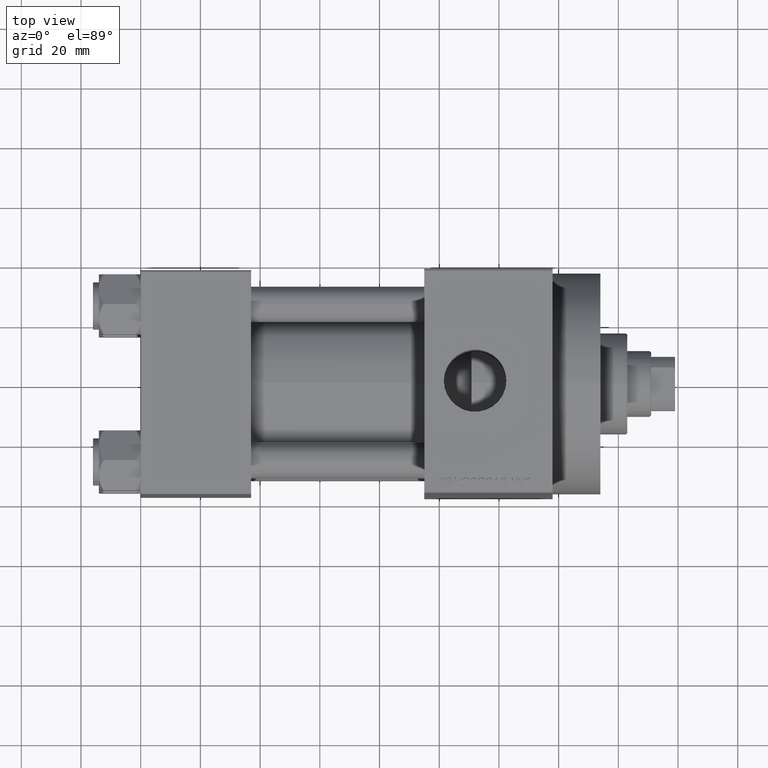
[diagram: clean part render]
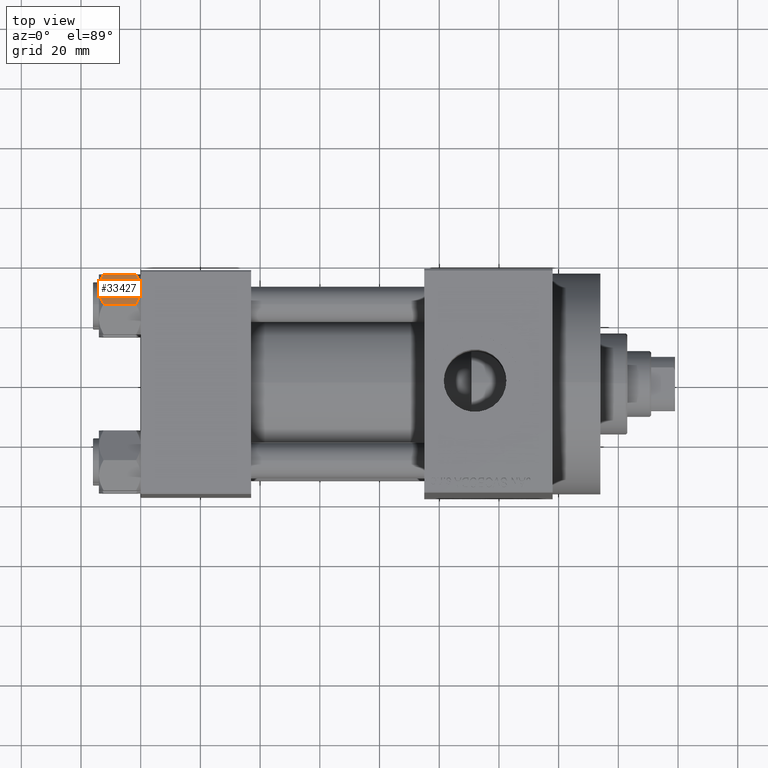
[diagram: same view with one face highlighted and labeled with its STEP entity id]
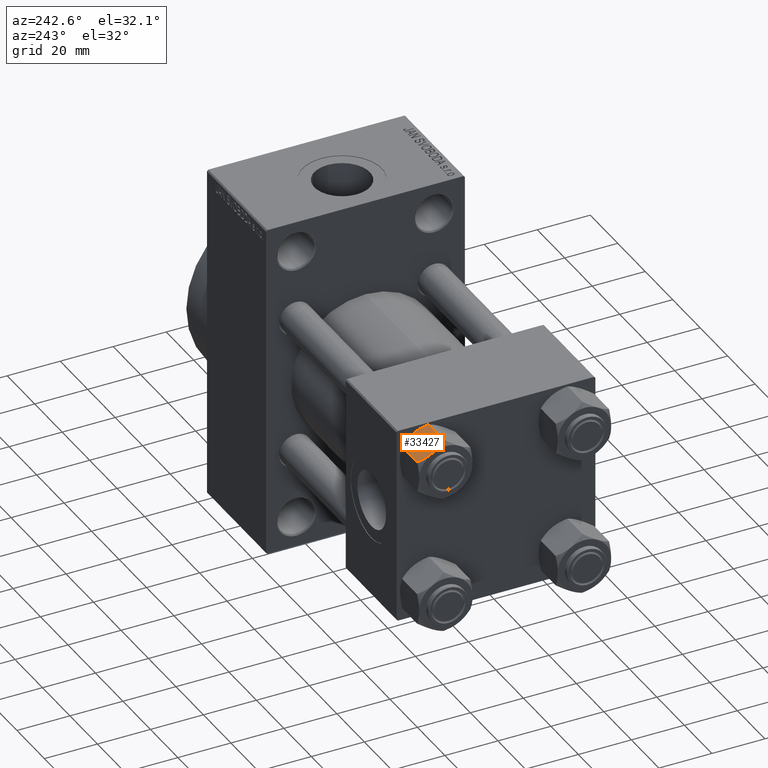
[diagram: same view with one face highlighted and labeled with its STEP entity id]
A machine part, top view. The second image highlights one B-rep face of the part: STEP entity #33427.
A second angle (auxiliary view) of the same face is appended — the face is thin or edge-on in the first view.
In plain terms, the highlighted planar face has unit normal (-0, -0.5, -0.866).
Its self-contained STEP definition (entity closure, byte-faithful):
#796 = CARTESIAN_POINT ( 'NONE',  ( 8.715000000000005187, 5.031607595987590109, 0.000000000000000000 ) ) ;
#1751 = EDGE_CURVE ( 'NONE', #17080, #6787, #30634, .T. ) ;
#2928 = CARTESIAN_POINT ( 'NONE',  ( 10.69662495661650503, 1.599332489581333672, -13.28854452935655139 ) ) ;
#3083 = VECTOR ( 'NONE', #19859, 1000.000000000000000 ) ;
#3394 = CARTESIAN_POINT ( 'NONE',  ( 8.715000000000005187, 5.031607595987590109, -14.00000000000000000 ) ) ;
#4304 = VERTEX_POINT ( 'NONE', #7261 ) ;
#5158 = CARTESIAN_POINT ( 'NONE',  ( 7.455303369716807182, 7.213466161761384221, -13.69973261901325934 ) ) ;
#5639 = CARTESIAN_POINT ( 'NONE',  ( 8.460569896449618099, 5.472293462311861312, -14.00000000000000000 ) ) ;
#5872 = CARTESIAN_POINT ( 'NONE',  ( 6.265545725125286403, 9.274186850887383926, -12.89876091710046957 ) ) ;
#6073 = EDGE_CURVE ( 'NONE', #22867, #4304, #17368, .T. ) ;
#6658 = CARTESIAN_POINT ( 'NONE',  ( 8.715000000000005187, 5.031607595987590109, 0.000000000000000000 ) ) ;
#6787 = VERTEX_POINT ( 'NONE', #9560 ) ;
#7007 = CARTESIAN_POINT ( 'NONE',  ( 7.713000053756307928, 6.767122412062951398, -0.1545239700039825748 ) ) ;
#7242 = CARTESIAN_POINT ( 'NONE',  ( 5.810000000000000497, 10.06321519197518022, -1.556784808024815892 ) ) ;
#7261 = CARTESIAN_POINT ( 'NONE',  ( 8.715000000000005187, 5.031607595987590109, -14.00000000000000000 ) ) ;
#7308 = VERTEX_POINT ( 'NONE', #26650 ) ;
#7435 = CARTESIAN_POINT ( 'NONE',  ( 9.220295946303432189, 4.156409344131451356, -14.00000000000000178 ) ) ;
#8396 = LINE ( 'NONE', #22958, #3083 ) ;
#9560 = CARTESIAN_POINT ( 'NONE',  ( 5.810000000000000497, 10.06321519197518022, -1.556784808024815892 ) ) ;
#10825 = CARTESIAN_POINT ( 'NONE',  ( 11.62000000000000099, -1.924525737834042474E-15, -1.556784808024813893 ) ) ;
#11308 = EDGE_CURVE ( 'NONE', #22867, #6787, #8396, .T. ) ;
#13482 = CARTESIAN_POINT ( 'NONE',  ( 9.227666995912102266, 4.143642311704121894, -0.03994118060690670519 ) ) ;
#17080 = VERTEX_POINT ( 'NONE', #6658 ) ;
#17368 = B_SPLINE_CURVE_WITH_KNOTS ( 'NONE', 3,
 ( #23299, #5872, #24014, #5158, #41222, #31182, #5639, #34760 ),
 .UNSPECIFIED., .F., .F.,
 ( 4, 2, 2, 4 ),
 ( 2.544312114902182352E-07, 0.003011550106433542526, 0.004517197944044567919, 0.006022845781655592444 ),
 .UNSPECIFIED. ) ;
#18421 = CARTESIAN_POINT ( 'NONE',  ( 11.62000000000000099, -1.689012838886770227E-15, -12.44321519197518633 ) ) ;
#18530 = LINE ( 'NONE', #26158, #29252 ) ;
#19743 = B_SPLINE_CURVE_WITH_KNOTS ( 'NONE', 3,
 ( #3394, #7435, #36589, #2928, #43277, #18421 ),
 .UNSPECIFIED., .F., .F.,
 ( 4, 2, 4 ),
 ( 0.006022845781655592444, 0.009013049135303636758, 0.01200325248895168194 ),
 .UNSPECIFIED. ) ;
#19859 = DIRECTION ( 'NONE',  ( -0.000000000000000000, -0.000000000000000000, 1.000000000000000000 ) ) ;
#21576 = CARTESIAN_POINT ( 'NONE',  ( 6.733375043383499126, 8.463882702393844326, -0.7114554706434494946 ) ) ;
#22867 = VERTEX_POINT ( 'NONE', #40471 ) ;
#22958 = CARTESIAN_POINT ( 'NONE',  ( 5.810000000000000497, 10.06321519197518022, -14.00000000000000000 ) ) ;
#23299 = CARTESIAN_POINT ( 'NONE',  ( 5.810000000000000497, 10.06321519197518022, -12.44321519197518455 ) ) ;
#24014 = CARTESIAN_POINT ( 'NONE',  ( 6.731401448974991375, 8.467301068182917945, -13.28585617404753627 ) ) ;
#24661 = FACE_OUTER_BOUND ( 'NONE', #25569, .T. ) ;
#24935 = CARTESIAN_POINT ( 'NONE',  ( 9.729165168613654657, 3.275021996682081493, -0.1903979688073405840 ) ) ;
#25166 = CARTESIAN_POINT ( 'NONE',  ( 6.265018354709773973, 9.275100283241448196, -1.101766453314953154 ) ) ;
#25363 = DIRECTION ( 'NONE',  ( 0.4999999999999998335, -0.8660254037844387076, 0.000000000000000000 ) ) ;
#25385 = ORIENTED_EDGE ( 'NONE', *, *, #1751, .F. ) ;
#25404 = CARTESIAN_POINT ( 'NONE',  ( 11.16445427487472131, 0.7890283410877956261, -1.101239082899531985 ) ) ;
#25569 = EDGE_LOOP ( 'NONE', ( #45190, #32619, #25385, #28962, #39308, #40077 ) ) ;
#26158 = CARTESIAN_POINT ( 'NONE',  ( 11.62000000000000099, -1.813166800014576593E-15, -14.00000000000000000 ) ) ;
#26650 = CARTESIAN_POINT ( 'NONE',  ( 11.62000000000000099, -1.689012838886770227E-15, -12.44321519197518633 ) ) ;
#28214 = EDGE_CURVE ( 'NONE', #7308, #44404, #18530, .T. ) ;
#28962 = ORIENTED_EDGE ( 'NONE', *, *, #39020, .F. ) ;
#29252 = VECTOR ( 'NONE', #30209, 1000.000000000000000 ) ;
#30209 = DIRECTION ( 'NONE',  ( -0.000000000000000000, -0.000000000000000000, 1.000000000000000000 ) ) ;
#30634 = B_SPLINE_CURVE_WITH_KNOTS ( 'NONE', 3,
 ( #796, #33029, #7007, #21576, #25166, #7242 ),
 .UNSPECIFIED., .F., .F.,
 ( 4, 2, 4 ),
 ( 0.006022845781655588107, 0.009013049135303636758, 0.01200325248895168367 ),
 .UNSPECIFIED. ) ;
#31182 = CARTESIAN_POINT ( 'NONE',  ( 8.202333004087901003, 5.919572880271053883, -13.96005881939309567 ) ) ;
#32293 = CARTESIAN_POINT ( 'NONE',  ( 5.810000000000000497, 10.06321519197518022, -14.00000000000000000 ) ) ;
#32619 = ORIENTED_EDGE ( 'NONE', *, *, #11308, .T. ) ;
#33029 = CARTESIAN_POINT ( 'NONE',  ( 8.209704053696576409, 5.906805847843727086, 3.430483436379916373E-15 ) ) ;
#33427 = ADVANCED_FACE ( 'NONE', ( #24661 ), #47098, .F. ) ;
#34760 = CARTESIAN_POINT ( 'NONE',  ( 8.715000000000005187, 5.031607595987590109, -14.00000000000000000 ) ) ;
#36164 = CARTESIAN_POINT ( 'NONE',  ( 10.69859855102501278, 1.595914123792262718, -0.7141438259524649501 ) ) ;
#36589 = CARTESIAN_POINT ( 'NONE',  ( 9.716999946243698005, 3.296092779912226156, -13.84547602999602134 ) ) ;
#37231 = B_SPLINE_CURVE_WITH_KNOTS ( 'NONE', 3,
 ( #10825, #25404, #36164, #46212, #24935, #13482, #42628, #39987 ),
 .UNSPECIFIED., .F., .F.,
 ( 4, 2, 2, 4 ),
 ( 2.544312114903581015E-07, 0.003011550106433540791, 0.004517197944044564449, 0.006022845781655588107 ),
 .UNSPECIFIED. ) ;
#37822 = AXIS2_PLACEMENT_3D ( 'NONE', #32293, #43521, #25363 ) ;
#39020 = EDGE_CURVE ( 'NONE', #44404, #17080, #37231, .T. ) ;
#39308 = ORIENTED_EDGE ( 'NONE', *, *, #28214, .F. ) ;
#39987 = CARTESIAN_POINT ( 'NONE',  ( 8.715000000000005187, 5.031607595987590109, 0.000000000000000000 ) ) ;
#40077 = ORIENTED_EDGE ( 'NONE', *, *, #44875, .F. ) ;
#40471 = CARTESIAN_POINT ( 'NONE',  ( 5.810000000000000497, 10.06321519197518022, -12.44321519197518455 ) ) ;
#40796 = CARTESIAN_POINT ( 'NONE',  ( 11.62000000000000099, -1.924525737834042474E-15, -1.556784808024813893 ) ) ;
#41222 = CARTESIAN_POINT ( 'NONE',  ( 7.700834831386345058, 6.788193195293094284, -13.80960203119265906 ) ) ;
#42628 = CARTESIAN_POINT ( 'NONE',  ( 8.969430103550381617, 4.590921729663312689, 3.523657060577888622E-15 ) ) ;
#43277 = CARTESIAN_POINT ( 'NONE',  ( 11.16498164529022574, 0.7881149087337292469, -12.89823354668504862 ) ) ;
#43521 = DIRECTION ( 'NONE',  ( -0.8660254037844387076, -0.4999999999999998335, 0.000000000000000000 ) ) ;
#44404 = VERTEX_POINT ( 'NONE', #40796 ) ;
#44875 = EDGE_CURVE ( 'NONE', #4304, #7308, #19743, .T. ) ;
#45190 = ORIENTED_EDGE ( 'NONE', *, *, #6073, .F. ) ;
#46212 = CARTESIAN_POINT ( 'NONE',  ( 9.974696630283190757, 2.849749030213792000, -0.3002673809867367205 ) ) ;
#47098 = PLANE ( 'NONE',  #37822 ) ;